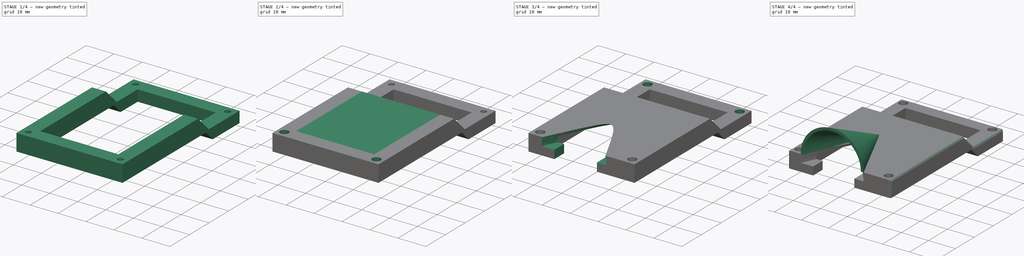
[diagram: build sequence overview — one tinted view per stage of 4, left to right]
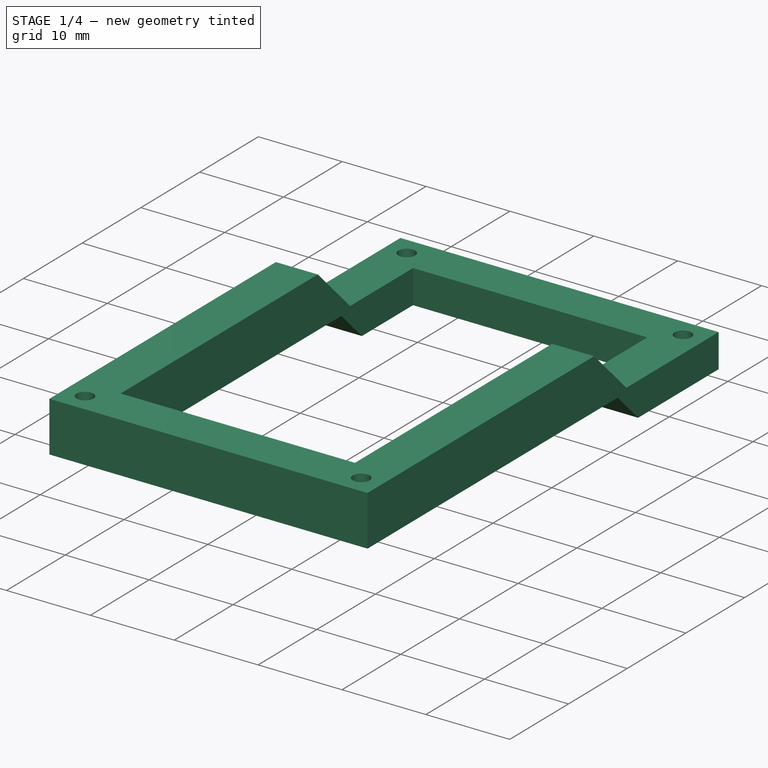
[diagram: stage 1 of 4 — iso view after this stage's code; geometry added in this stage tinted green]
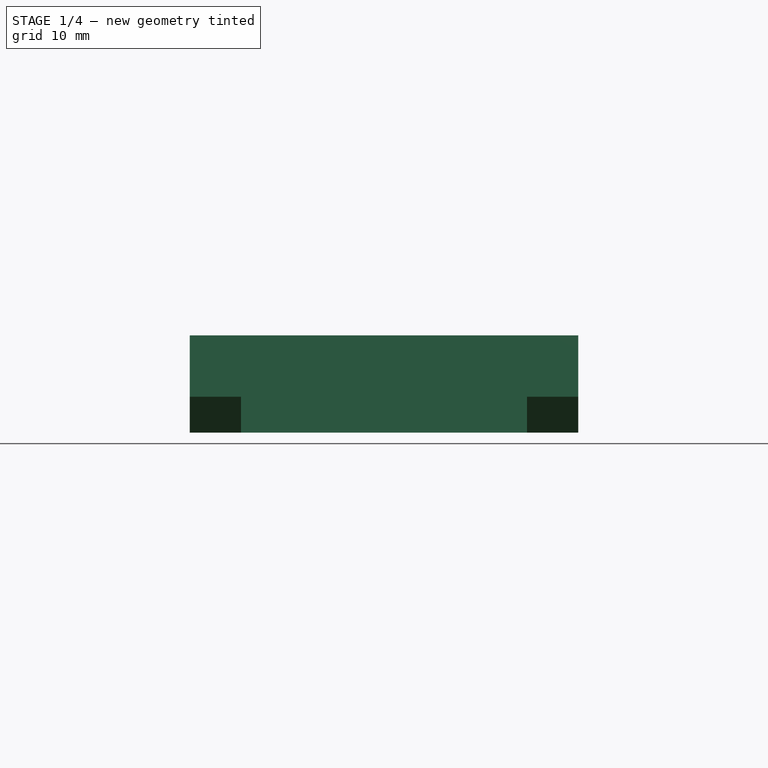
[diagram: stage 1 of 4 — front view after this stage's code; geometry added in this stage tinted green]
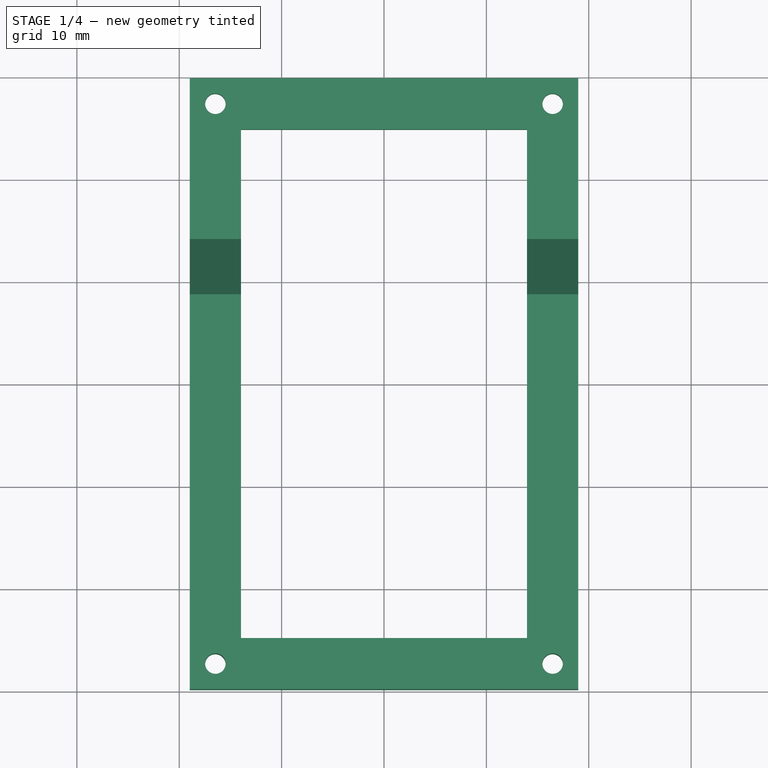
[diagram: stage 1 of 4 — top view after this stage's code; geometry added in this stage tinted green]
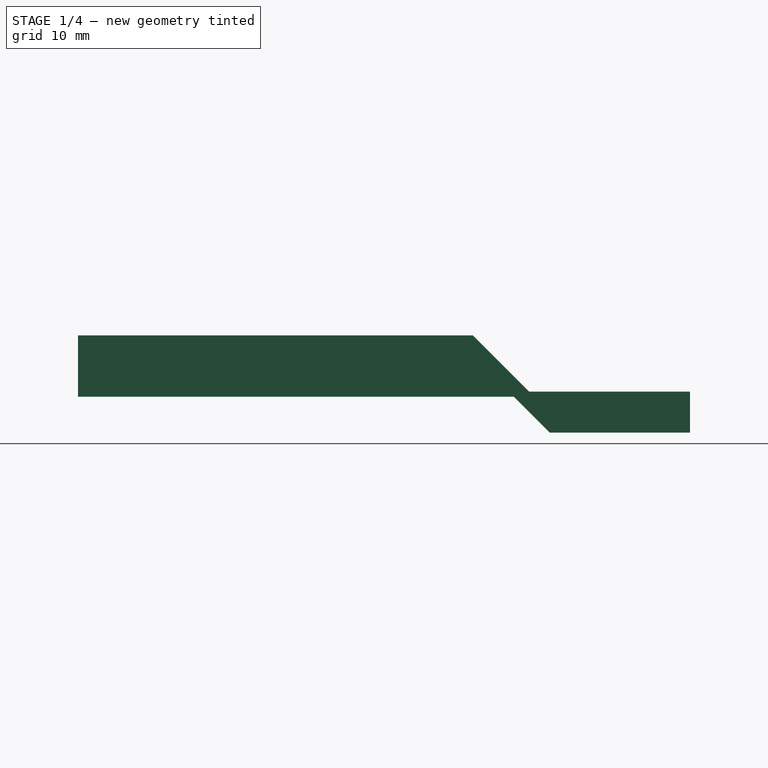
[diagram: stage 1 of 4 — right view after this stage's code; geometry added in this stage tinted green]
FCSTD DOCUMENT  (FreeCAD 0.18R16093 +53 (Git))
Label: top_plate_A
License: All rights reserved
LicenseURL: http://en.wikipedia.org/wiki/All_rights_reserved
objects: Sketcher::SketchObject×8, PartDesign::Pocket×5, PartDesign::Pad×3, PartDesign::SubtractiveCone×2, PartDesign::AdditiveCone×1, PartDesign::Fillet×1, PartDesign::Body×1
note: 32 computed .brp shape members not serialized (recipe doc carries the construction recipe); baked Part::Feature solids carry a one-line shape summary decoded from their .brp

FEATURE [Sketcher::SketchObject] Sketch002  label="Sketch"
  MapMode = 5
  Support = -> [XY_Plane]
  sketch-geometry (12):
    g0: LineSegment StartX=-18.97 StartY=29.892 StartZ=0 EndX=18.97 EndY=29.892 EndZ=0
    g1: LineSegment StartX=18.97 StartY=29.892 StartZ=0 EndX=18.97 EndY=-29.892 EndZ=0
    g2: LineSegment StartX=18.97 StartY=-29.892 StartZ=0 EndX=-18.97 EndY=-29.892 EndZ=0
    g3: LineSegment StartX=-18.97 StartY=-29.892 StartZ=0 EndX=-18.97 EndY=29.892 EndZ=0
    g4: LineSegment StartX=-13.97 StartY=24.892 StartZ=0 EndX=13.97 EndY=24.892 EndZ=0
    g5: LineSegment StartX=13.97 StartY=24.892 StartZ=0 EndX=13.97 EndY=-24.892 EndZ=0
    g6: LineSegment StartX=13.97 StartY=-24.892 StartZ=0 EndX=-13.97 EndY=-24.892 EndZ=0
    g7: LineSegment StartX=-13.97 StartY=-24.892 StartZ=0 EndX=-13.97 EndY=24.892 EndZ=0
    g8: Circle CenterX=-16.47 CenterY=27.392 CenterZ=0 NormalX=0 NormalY=0 NormalZ=1 AngleXU=0 Radius=1
    g9: Circle CenterX=16.47 CenterY=27.392 CenterZ=0 NormalX=0 NormalY=0 NormalZ=1 AngleXU=0 Radius=1
    g10: Circle CenterX=-16.47 CenterY=-27.392 CenterZ=0 NormalX=0 NormalY=0 NormalZ=1 AngleXU=0 Radius=1
    g11: Circle CenterX=16.47 CenterY=-27.392 CenterZ=0 NormalX=0 NormalY=0 NormalZ=1 AngleXU=0 Radius=1
  constraints (37):
    c: Coincident(g0,g1)
    c: Coincident(g1,g2)
    c: Coincident(g2,g3)
    c: Coincident(g3,g0)
    c: Horizontal(g0)
    c: Horizontal(g2)
    c: Vertical(g1)
    c: Vertical(g3)
    c: DistanceX(g0,g0) = 37.94
    c: DistanceY(g1,g1) = 59.784
    c: DistanceX(g0,g-1) = 18.97
    c: DistanceY(g-1,g0) = 29.892
    c: Coincident(g4,g5)
    c: Coincident(g5,g6)
    c: Coincident(g6,g7)
    c: Coincident(g7,g4)
    c: Horizontal(g4)
    c: Horizontal(g6)
    c: Vertical(g5)
    c: Vertical(g7)
    c: DistanceX(g4,g4) = 27.94
    c: DistanceY(g7,g7) = 49.784
    c: DistanceY(g-1,g4) = 24.892
    c: DistanceX(g4,g-1) = 13.97
    c: DistanceY(g8,g0) = 2.5
    c: DistanceX(g0,g8) = 2.5
    c: Radius(g8) = 1
    c: Symmetric(g8,g8,g9)
    c: DistanceX(g9,g0) = 2.5
    c: DistanceY(g9,g0) = 2.5
    c: Radius(g9) = 1
    c: DistanceX(g2,g10) = 2.5
    c: DistanceY(g2,g10) = 2.5
    c: Radius(g10) = 1
    c: DistanceX(g11,g1) = 2.5
    c: DistanceY(g1,g11) = 2.5
    c: Radius(g11) = 1
FEATURE [PartDesign::Pad] Pad
  Length = 10
  Length2 = 100
  Profile = -> Sketch002
  Type = 0
FEATURE [Sketcher::SketchObject] Sketch  label="Sketch001"
  MapMode = 5
  Placement = pos=(18.97,0,0) rot=(0.57735,0.57735,0.57735;2.0944rad)
  Support = -> [Pad]
  sketch-geometry (8):
    g0: LineSegment StartX=8.683 StartY=10 StartZ=0 EndX=29.892 EndY=10 EndZ=0
    g1: LineSegment StartX=29.892 StartY=10 StartZ=0 EndX=29.892 EndY=4.5 EndZ=0
    g2: LineSegment StartX=29.892 StartY=4.5 StartZ=0 EndX=14.183 EndY=4.5 EndZ=0
    g3: LineSegment StartX=14.183 StartY=4.5 StartZ=0 EndX=8.683 EndY=10 EndZ=0
    g4: LineSegment StartX=-29.892 StartY=4 StartZ=0 EndX=12.692 EndY=4 EndZ=0
    g5: LineSegment StartX=12.692 StartY=4 StartZ=0 EndX=16.692 EndY=0 EndZ=0
    g6: LineSegment StartX=16.692 StartY=0 StartZ=0 EndX=-29.892 EndY=0 EndZ=0
    g7: LineSegment StartX=-29.892 StartY=0 StartZ=0 EndX=-29.892 EndY=4 EndZ=0
  constraints (24):
    c: Coincident(g0,g1)
    c: Coincident(g1,g2)
    c: Coincident(g2,g3)
    c: Coincident(g3,g0)
    c: Horizontal(g0)
    c: Horizontal(g2)
    c: Vertical(g1)
    c: DistanceX(g-1,g0) = 8.683
    c: DistanceY(g1,g1) = 5.5
    c: DistanceX(g-1,g0) = 29.892
    c: DistanceY(g-1,g2) = 4.5
    c: Angle(g2,g3) = 2.35619
    c: Coincident(g4,g5)
    c: Coincident(g5,g6)
    c: Coincident(g6,g7)
    c: Coincident(g7,g4)
    c: Horizontal(g4)
    c: Horizontal(g6)
    c: Vertical(g7)
    c: DistanceX(g6,g-1) = 29.892
    c: DistanceY(g-1,g4) = 4
    c: DistanceY(g7,g7) = 4
    c: Angle(g4,g5) = 2.35619
    c: DistanceX(g-1,g4) = 12.692
FEATURE [PartDesign::Pocket] Pocket
  BaseFeature = -> Pad
  Length = 37.94
  Length2 = 100
  Profile = -> Sketch
  Type = 0
FEATURE [Sketcher::SketchObject] Sketch003
  MapMode = 5
  Placement = pos=(18.97,0,0) rot=(0.57735,0.57735,0.57735;2.0944rad)
  Support = -> [Pocket]
  sketch-geometry (4):
    g0: LineSegment StartX=16.192 StartY=0.5 StartZ=0 EndX=29.892 EndY=0.5 EndZ=0
    g1: LineSegment StartX=29.892 StartY=0.5 StartZ=0 EndX=29.892 EndY=0 EndZ=0
    g2: LineSegment StartX=29.892 StartY=0 StartZ=0 EndX=16.692 EndY=0 EndZ=0
    g3: LineSegment StartX=16.692 StartY=0 StartZ=0 EndX=16.192 EndY=0.5 EndZ=0
  constraints (12):
    c: Coincident(g0,g1)
    c: Coincident(g1,g2)
    c: Coincident(g2,g3)
    c: Coincident(g3,g0)
    c: Horizontal(g0)
    c: Horizontal(g2)
    c: Vertical(g1)
    c: DistanceY(g1,g1) = 0.5
    c: DistanceX(g-1,g0) = 29.892
    c: DistanceX(g2,g2) = 13.2
    c: DistanceY(g-1,g0) = 0.5
    c: Angle(g2,g3) = 2.35619
FEATURE [PartDesign::Pocket] Pocket001
  BaseFeature = -> Pocket
  Length = 37.94
  Length2 = 100
  Profile = -> Sketch003
  Type = 0
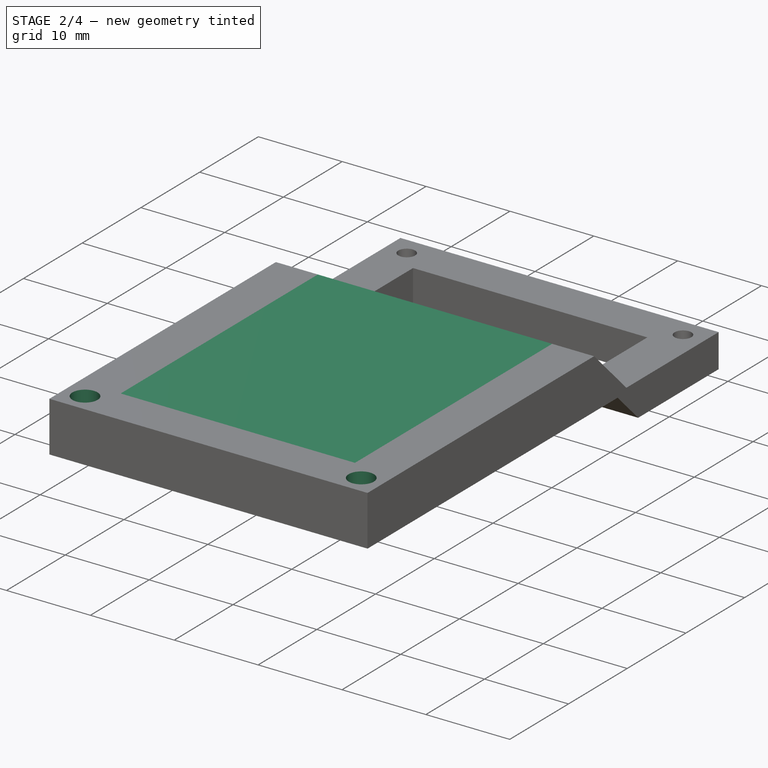
[diagram: stage 2 of 4 — iso view after this stage's code; geometry added in this stage tinted green]
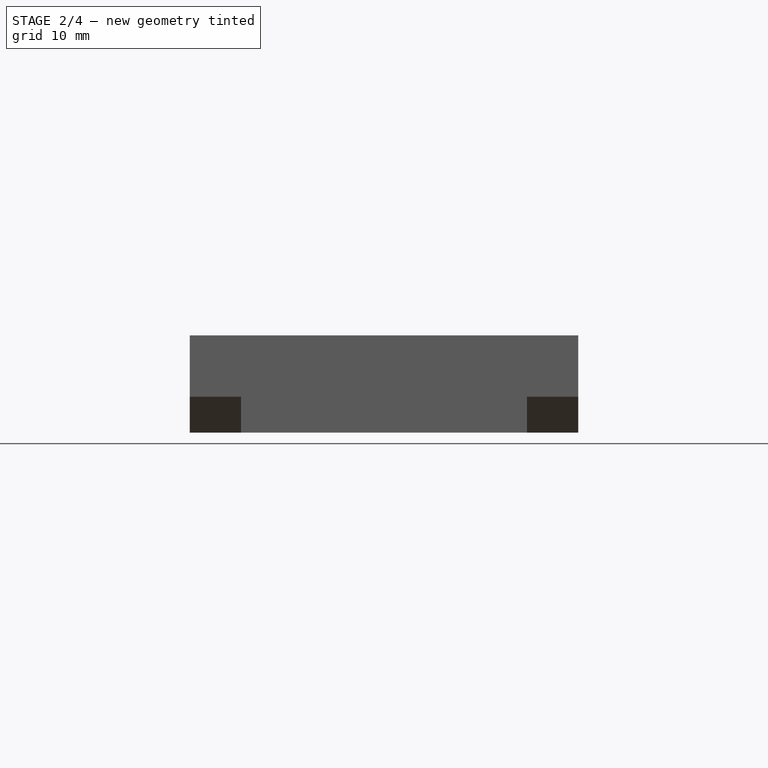
[diagram: stage 2 of 4 — front view after this stage's code; geometry added in this stage tinted green]
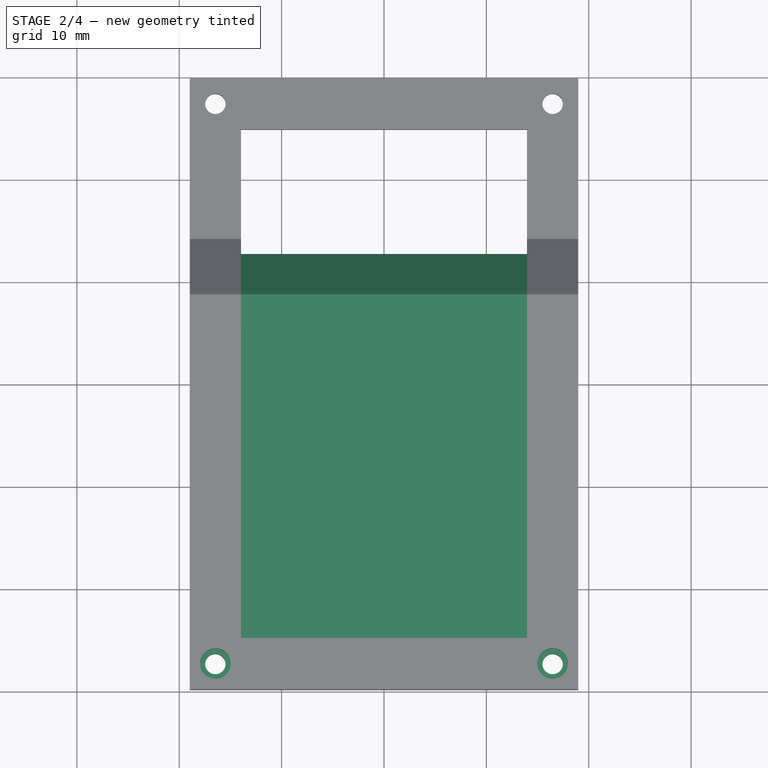
[diagram: stage 2 of 4 — top view after this stage's code; geometry added in this stage tinted green]
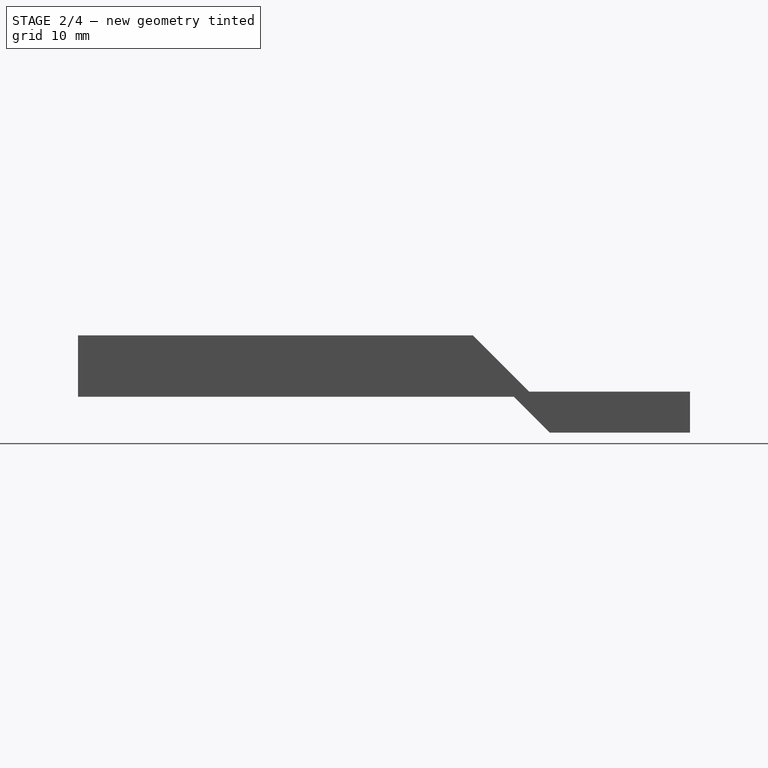
[diagram: stage 2 of 4 — right view after this stage's code; geometry added in this stage tinted green]
FEATURE [Sketcher::SketchObject] Sketch004
  MapMode = 5
  Placement = pos=(-13.97,0,0) rot=(0.57735,0.57735,0.57735;2.0944rad)
  Support = -> [Pocket001]
  sketch-geometry (8):
    g0: LineSegment StartX=11.692 StartY=7 StartZ=0 EndX=12.692 EndY=6 EndZ=0
    g1: LineSegment StartX=12.692 StartY=6 StartZ=0 EndX=12.692 EndY=4 EndZ=0
    g2: LineSegment StartX=12.692 StartY=4 StartZ=0 EndX=11.692 EndY=4 EndZ=0
    g3: LineSegment StartX=11.692 StartY=4 StartZ=0 EndX=11.692 EndY=7 EndZ=0
    g4: LineSegment StartX=8.683 StartY=10 StartZ=0 EndX=11.683 EndY=7 EndZ=0
    g5: LineSegment StartX=11.683 StartY=7 StartZ=0 EndX=11.683 EndY=6 EndZ=0
    g6: LineSegment StartX=11.683 StartY=6 StartZ=0 EndX=8.683 EndY=9 EndZ=0
    g7: LineSegment StartX=8.683 StartY=9 StartZ=0 EndX=8.683 EndY=10 EndZ=0
  constraints (24):
    c: Coincident(g0,g1)
    c: Coincident(g1,g2)
    c: Coincident(g2,g3)
    c: Coincident(g3,g0)
    c: Horizontal(g2)
    c: Vertical(g1)
    c: Vertical(g3)
    c: DistanceY(g-1,g2) = 4
    c: DistanceY(g3,g3) = 3
    c: DistanceX(g0,g0) = 1
    c: DistanceX(g-1,g1) = 12.692
    c: Angle(g0,g1) = 2.35619
    c: Coincident(g4,g5)
    c: Coincident(g5,g6)
    c: Coincident(g6,g7)
    c: Coincident(g7,g4)
    c: Vertical(g5)
    c: Vertical(g7)
    c: DistanceX(g-1,g6) = 8.683
    c: DistanceX(g4,g4) = 3
    c: DistanceY(g5,g5) = 1
    c: DistanceY(g-1,g6) = 9
    c: Angle(g4,g5) = 2.35619
    c: Angle(g6,g7) = 2.35619
FEATURE [PartDesign::Pad] Pad001
  BaseFeature = -> Pocket001
  Length = 27.94
  Length2 = 100
  Profile = -> Sketch004
  Type = 0
FEATURE [Sketcher::SketchObject] Sketch005
  MapMode = 5
  Placement = pos=(-13.97,0,0) rot=(0.57735,0.57735,0.57735;2.0944rad)
  Support = -> [Pad001]
  sketch-geometry (4):
    g0: LineSegment StartX=-24.892 StartY=10 StartZ=0 EndX=8.683 EndY=10 EndZ=0
    g1: LineSegment StartX=8.683 StartY=10 StartZ=0 EndX=8.683 EndY=9 EndZ=0
    g2: LineSegment StartX=8.683 StartY=9 StartZ=0 EndX=-24.892 EndY=9 EndZ=0
    g3: LineSegment StartX=-24.892 StartY=9 StartZ=0 EndX=-24.892 EndY=10 EndZ=0
  constraints (12):
    c: Coincident(g0,g1)
    c: Coincident(g1,g2)
    c: Coincident(g2,g3)
    c: Coincident(g3,g0)
    c: Horizontal(g0)
    c: Horizontal(g2)
    c: Vertical(g1)
    c: Vertical(g3)
    c: DistanceX(g2,g-1) = 24.892
    c: DistanceY(g1,g1) = 1
    c: DistanceY(g-1,g1) = 9
    c: DistanceX(g-1,g1) = 8.683
FEATURE [PartDesign::Pad] Pad002
  BaseFeature = -> Pad001
  Length = 27.94
  Length2 = 100
  Profile = -> Sketch005
  Type = 0
FEATURE [Sketcher::SketchObject] Sketch006
  MapMode = 5
  Placement = pos=(0,0,10) rot=(0,0,1;0rad)
  Support = -> [Pad002]
  sketch-geometry (2):
    g0: Circle CenterX=-16.47 CenterY=-27.392 CenterZ=0 NormalX=0 NormalY=0 NormalZ=1 AngleXU=0 Radius=1.5
    g1: Circle CenterX=16.47 CenterY=-27.392 CenterZ=0 NormalX=0 NormalY=0 NormalZ=1 AngleXU=0 Radius=1.5
  constraints (6):
    c: DistanceY(g0,g-1) = 27.392
    c: DistanceX(g0,g-1) = 16.47
    c: DistanceY(g1,g-1) = 27.392
    c: DistanceX(g-1,g1) = 16.47
    c: Equal(g0,g1)
    c: Radius(g0) = 1.5
FEATURE [PartDesign::Pocket] Pocket002
  BaseFeature = -> Pad002
  Length = 2
  Length2 = 100
  Profile = -> Sketch006
  Type = 0
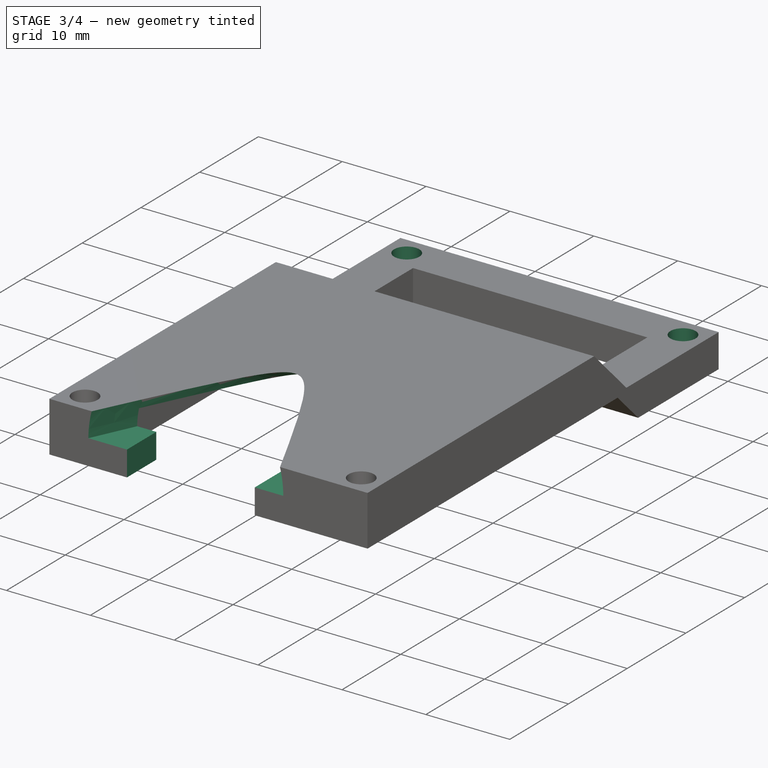
[diagram: stage 3 of 4 — iso view after this stage's code; geometry added in this stage tinted green]
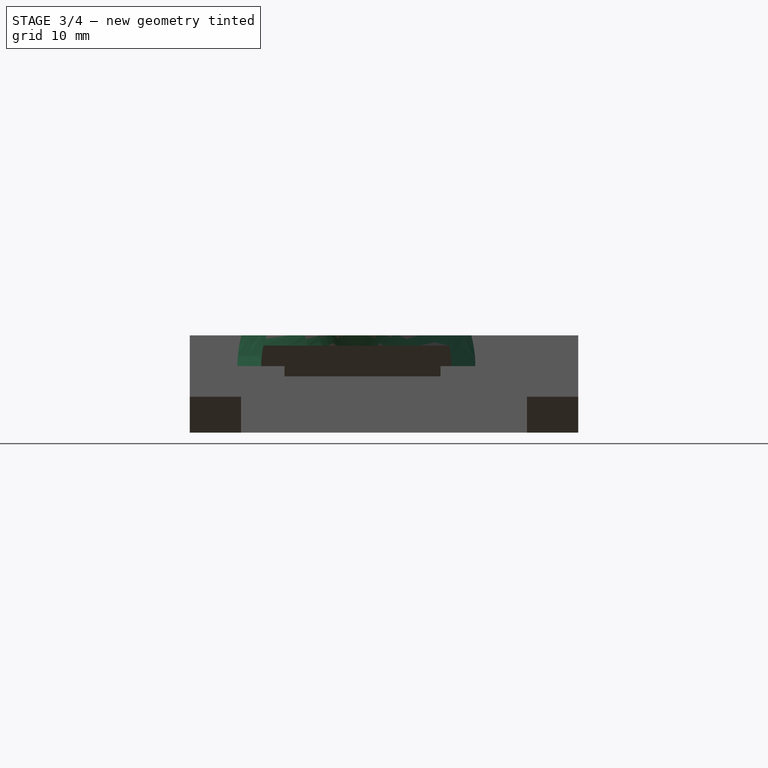
[diagram: stage 3 of 4 — front view after this stage's code; geometry added in this stage tinted green]
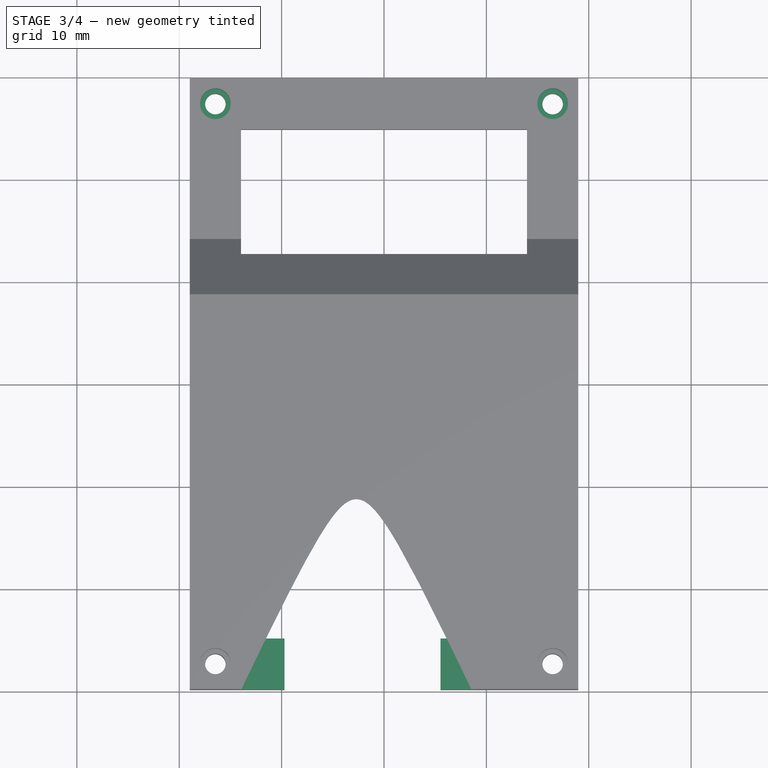
[diagram: stage 3 of 4 — top view after this stage's code; geometry added in this stage tinted green]
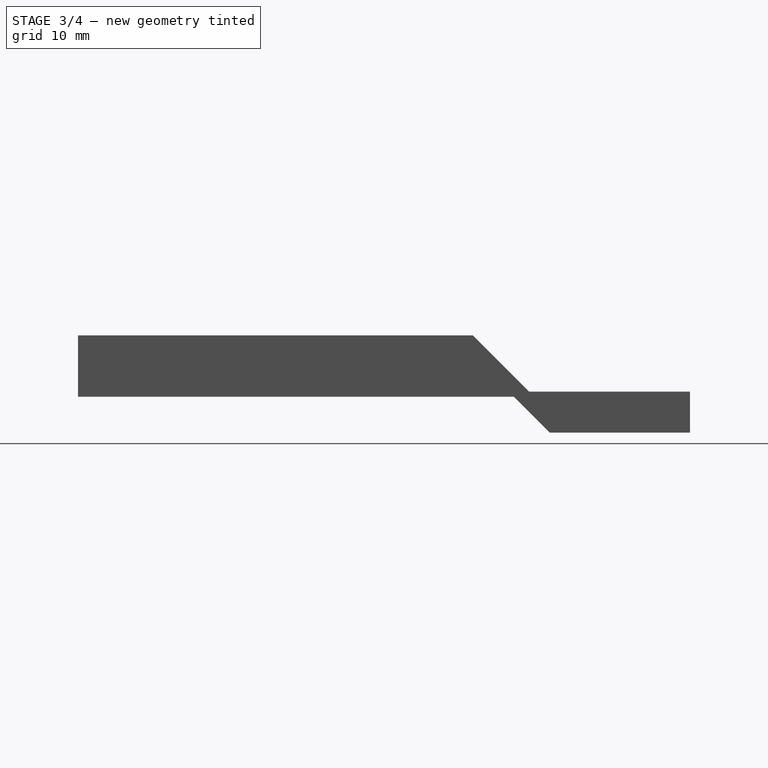
[diagram: stage 3 of 4 — right view after this stage's code; geometry added in this stage tinted green]
FEATURE [Sketcher::SketchObject] Sketch007
  MapMode = 5
  Placement = pos=(0,0,4.5) rot=(0,0,1;0rad)
  Support = -> [Pocket002]
  sketch-geometry (2):
    g0: Circle CenterX=-16.47 CenterY=27.392 CenterZ=0 NormalX=0 NormalY=0 NormalZ=1 AngleXU=0 Radius=1.5
    g1: Circle CenterX=16.47 CenterY=27.392 CenterZ=0 NormalX=0 NormalY=0 NormalZ=1 AngleXU=0 Radius=1.5
  constraints (6):
    c: Equal(g0,g1)
    c: DistanceX(g0,g-1) = 16.47
    c: DistanceX(g-1,g1) = 16.47
    c: DistanceY(g-1,g0) = 27.392
    c: DistanceY(g-1,g1) = 27.392
    c: Radius(g0) = 1.5
FEATURE [PartDesign::Pocket] Pocket003
  BaseFeature = -> Pocket002
  Length = 2
  Length2 = 100
  Profile = -> Sketch007
  Type = 0
FEATURE [Sketcher::SketchObject] Sketch008
  MapMode = 5
  Placement = pos=(0,0,10) rot=(0,0,1;0rad)
  Support = -> [Pocket003]
  sketch-geometry (4):
    g0: LineSegment StartX=-9.72 StartY=-24.892 StartZ=0 EndX=5.52 EndY=-24.892 EndZ=0
    g1: LineSegment StartX=5.52 StartY=-24.892 StartZ=0 EndX=5.52 EndY=-29.892 EndZ=0
    g2: LineSegment StartX=5.52 StartY=-29.892 StartZ=0 EndX=-9.72 EndY=-29.892 EndZ=0
    g3: LineSegment StartX=-9.72 StartY=-29.892 StartZ=0 EndX=-9.72 EndY=-24.892 EndZ=0
  constraints (12):
    c: Coincident(g0,g1)
    c: Coincident(g1,g2)
    c: Coincident(g2,g3)
    c: Coincident(g3,g0)
    c: Horizontal(g0)
    c: Horizontal(g2)
    c: Vertical(g1)
    c: Vertical(g3)
    c: DistanceX(g0,g-1) = 9.72
    c: DistanceX(g2,g2) = 15.24
    c: DistanceY(g1,g1) = 5
    c: DistanceY(g1,g-1) = 29.892
FEATURE [PartDesign::Pocket] Pocket004
  BaseFeature = -> Pocket003
  Length = 6
  Length2 = 100
  Profile = -> Sketch008
  Type = 0
FEATURE [PartDesign::SubtractiveCone] Cone
  Angle = 180
  AttacherType = Attacher::AttachEngine3D
  AttachmentOffset = pos=(-2.7,7,-20) rot=(0,0,1;0rad)
  BaseFeature = -> Pocket004
  Height = 25
  MapMode = 5
  Placement = pos=(-2.7,-4.892,7) rot=(1,0,0;1.5708rad)
  Radius1 = 0
  Radius2 = 11.62
  Support = -> [Pocket004]
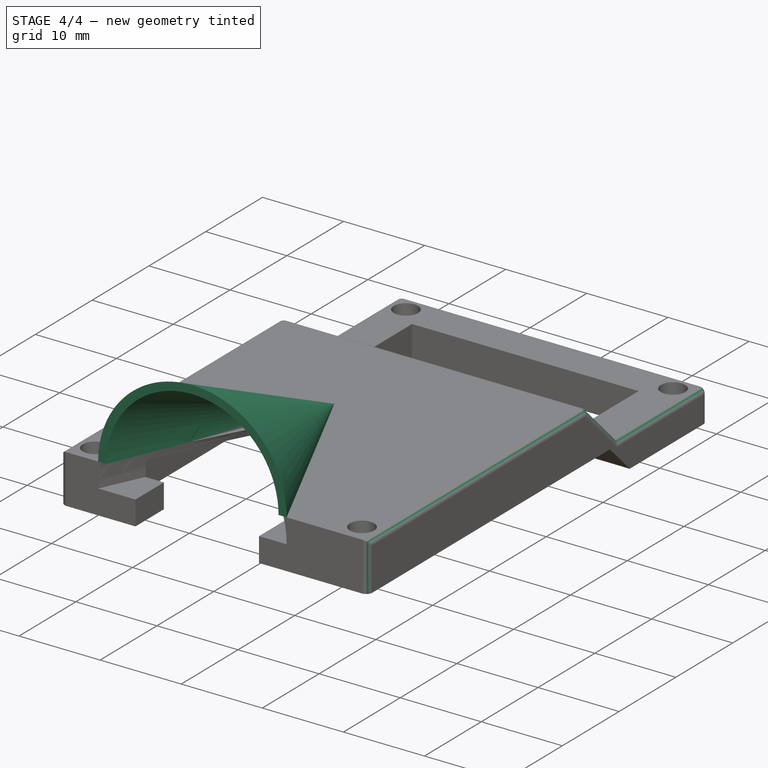
[diagram: stage 4 of 4 — iso view after this stage's code; geometry added in this stage tinted green]
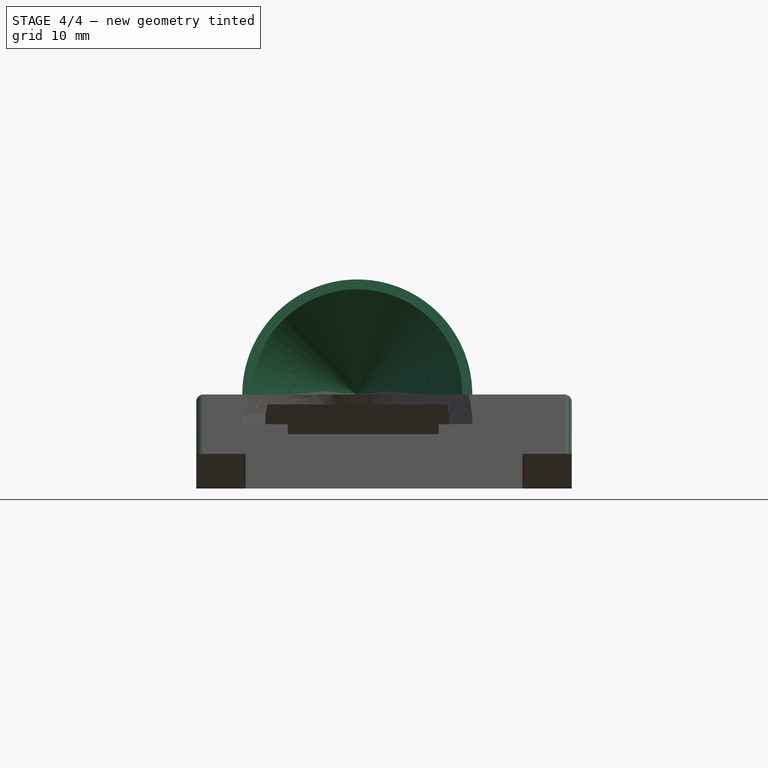
[diagram: stage 4 of 4 — front view after this stage's code; geometry added in this stage tinted green]
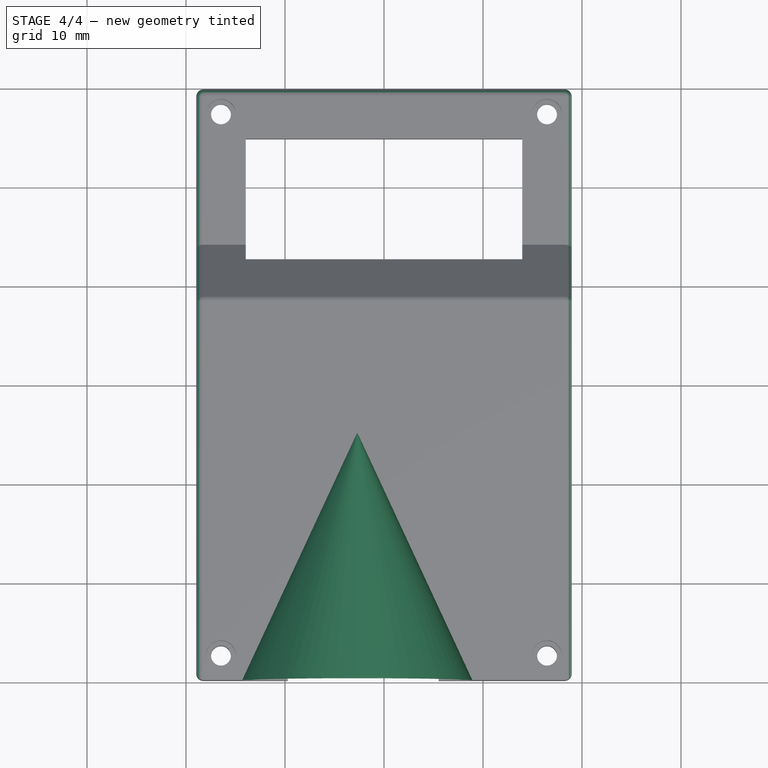
[diagram: stage 4 of 4 — top view after this stage's code; geometry added in this stage tinted green]
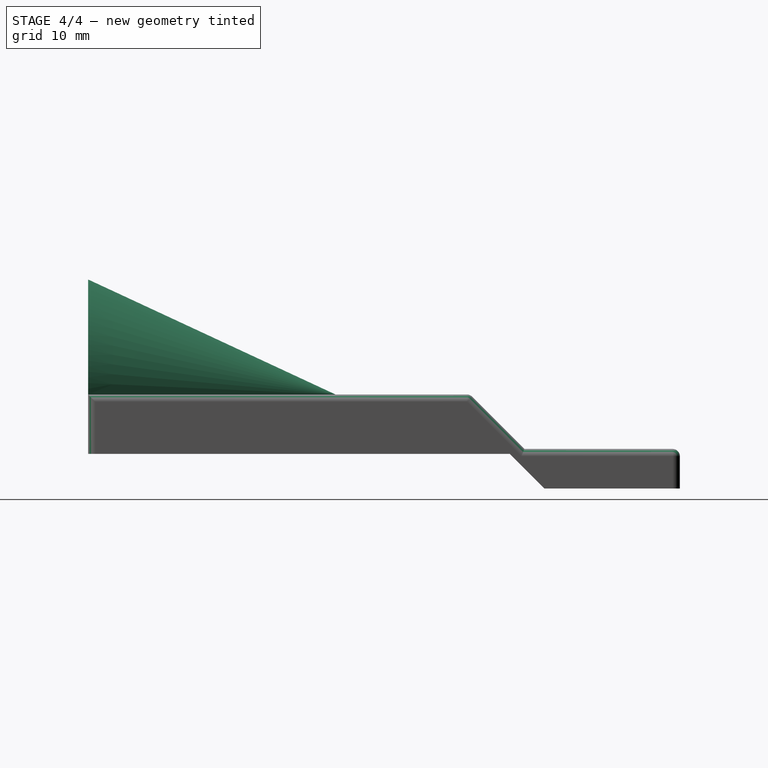
[diagram: stage 4 of 4 — right view after this stage's code; geometry added in this stage tinted green]
FEATURE [PartDesign::AdditiveCone] Cone001
  Angle = 180
  AttacherType = Attacher::AttachEngine3D
  AttachmentOffset = pos=(0,3,0) rot=(0,0,1;0rad)
  BaseFeature = -> Cone
  Height = 25
  MapMode = 2
  Placement = pos=(-2.7,-4.892,10) rot=(1,0,0;1.5708rad)
  Radius1 = 0
  Radius2 = 11.62
  Support = -> [Cone]
FEATURE [PartDesign::SubtractiveCone] Cone002
  Angle = 180
  AttacherType = Attacher::AttachEngine3D
  AttachmentOffset = pos=(0,0,-25) rot=(0,0,1;0rad)
  BaseFeature = -> Cone001
  Height = 25
  MapMode = 5
  Placement = pos=(-2.7,-4.892,10) rot=(1,0,0;1.5708rad)
  Radius1 = 0
  Radius2 = 10.62
  Support = -> [Cone001]
FEATURE [PartDesign::Fillet] Fillet  label="top_plate_complete_with_dome_w_fillet"
  Base = -> Cone002 [Edge32,Edge16,Edge17,Edge18,Edge19,Edge3,Edge4,Edge21,Edge2,Edge30,Edge31,Edge69,Edge122,Edge58]
  BaseFeature = -> Cone002
  Placement = pos=(-2.7,-4.892,10) rot=(1,0,0;1.5708rad)
  Radius = 0.75
FEATURE [PartDesign::Body] Body  label="top_plate"
  Group = -> [Sketch002,Pad,Sketch,Pocket,Sketch003,Pocket001,Sketch004,Pad001,Sketch005,Pad002,Sketch006,Pocket002,Sketch007,Pocket003,Sketch008,Pocket004,Cone,Cone001,Cone002,Fillet]
  Origin = -> Origin
  Tip = -> Fillet
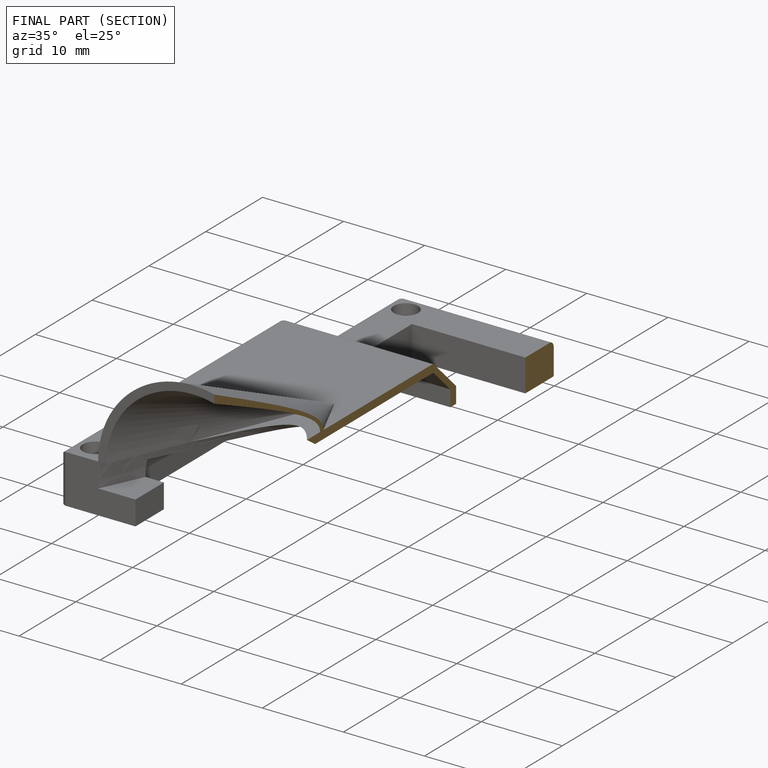
[diagram: finished part — half-section view (interior)]
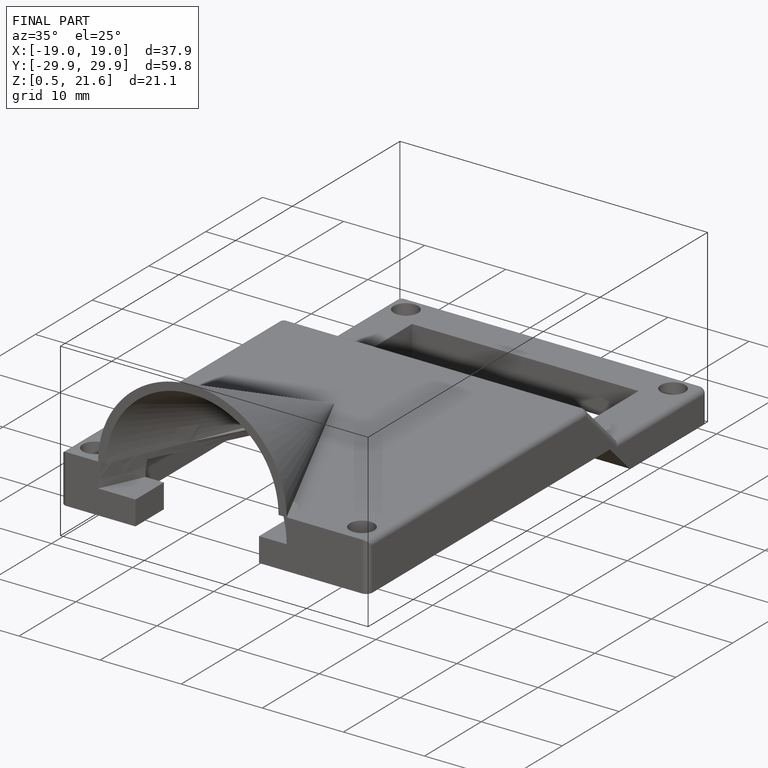
[diagram: finished part — iso view with bounding-box wireframe]
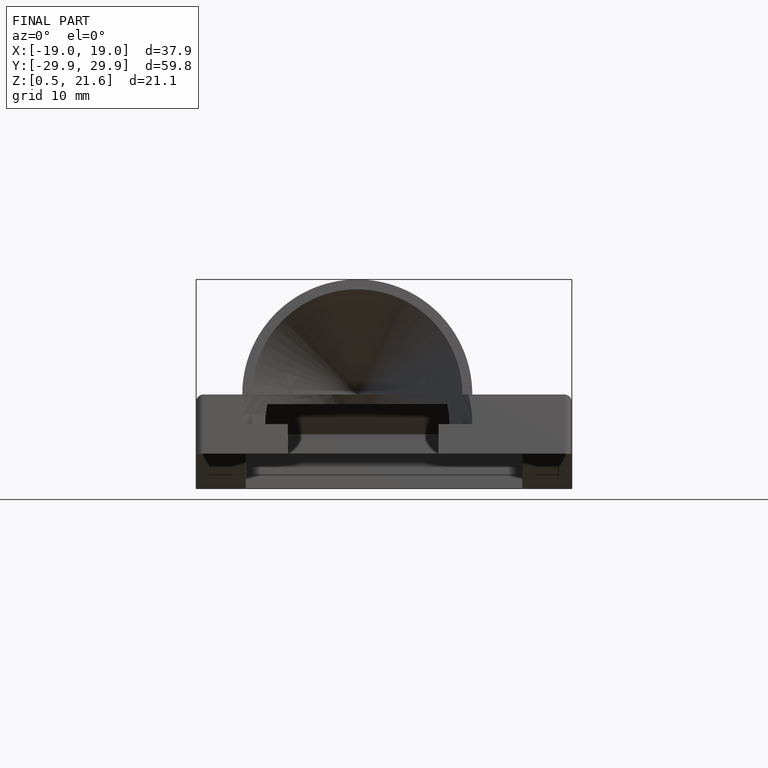
[diagram: finished part — front view with bounding-box wireframe]
